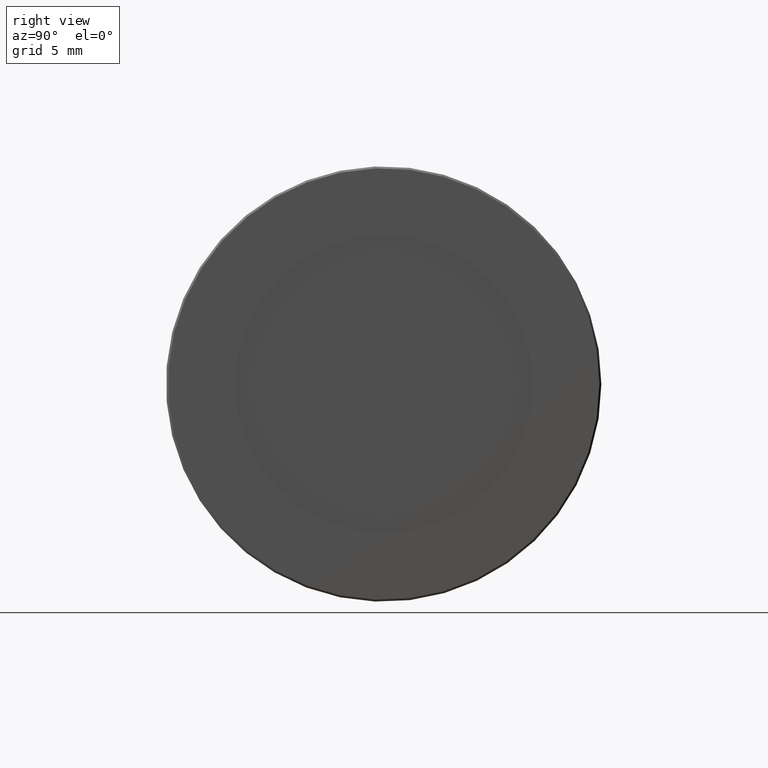
[diagram: clean part render]
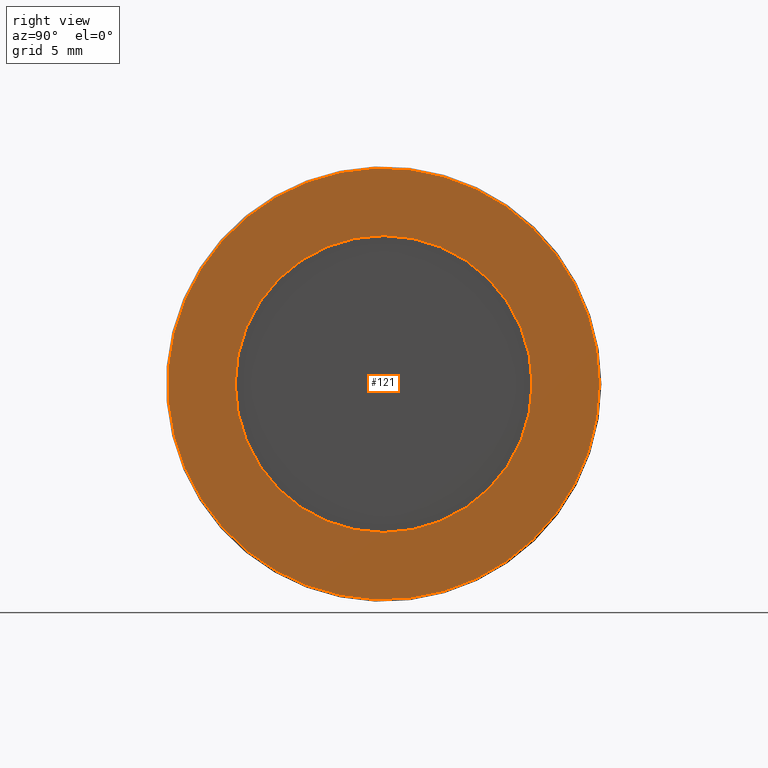
[diagram: same view with one face highlighted and labeled with its STEP entity id]
A machine part, right view. The second image highlights one B-rep face of the part: STEP entity #121.
In plain terms, the highlighted planar face has unit normal (1, 0, 0).
Its self-contained STEP definition (entity closure, byte-faithful):
#19=PLANE('',#141);
#27=FACE_BOUND('',#53,.T.);
#36=FACE_OUTER_BOUND('',#52,.T.);
#52=EDGE_LOOP('',(#102));
#53=EDGE_LOOP('',(#103));
#67=CIRCLE('',#138,10.9);
#69=CIRCLE('',#142,7.5);
#77=VERTEX_POINT('',#209);
#79=VERTEX_POINT('',#215);
#87=EDGE_CURVE('',#77,#77,#67,.T.);
#89=EDGE_CURVE('',#79,#79,#69,.T.);
#102=ORIENTED_EDGE('',*,*,#87,.F.);
#103=ORIENTED_EDGE('',*,*,#89,.T.);
#121=ADVANCED_FACE('',(#36,#27),#19,.T.);
#138=AXIS2_PLACEMENT_3D('',#210,#170,#171);
#141=AXIS2_PLACEMENT_3D('',#214,#176,#177);
#142=AXIS2_PLACEMENT_3D('',#216,#178,#179);
#170=DIRECTION('center_axis',(-1.,0.,0.));
#171=DIRECTION('ref_axis',(0.,-1.,0.));
#176=DIRECTION('center_axis',(1.,0.,0.));
#177=DIRECTION('ref_axis',(0.,0.,-1.));
#178=DIRECTION('center_axis',(-1.,0.,0.));
#179=DIRECTION('ref_axis',(0.,0.,1.));
#209=CARTESIAN_POINT('',(6.5,10.9,-1.33486501107062E-15));
#210=CARTESIAN_POINT('Origin',(6.5,0.,0.));
#214=CARTESIAN_POINT('Origin',(6.5,-4.48690509505221E-16,1.6821560979169E-16));
#215=CARTESIAN_POINT('',(6.5,9.18485099360515E-16,-7.5));
#216=CARTESIAN_POINT('Origin',(6.5,0.,0.));